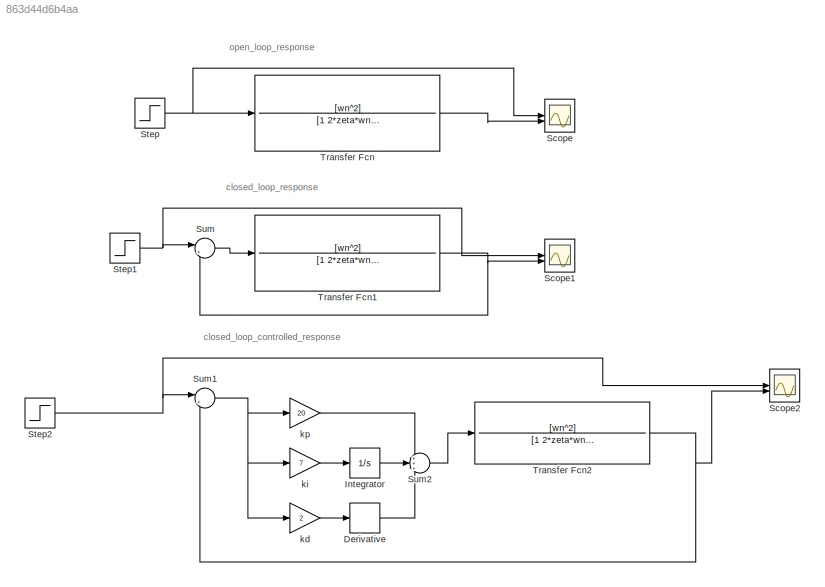
MODEL slx_863d44d6b4aa
KIND model
CONFIG AbsTol = auto
CONFIG EnableMultiTasking = off
CONFIG FixedStep = auto
CONFIG MaxStep = auto
CONFIG MinStep = auto
CONFIG RelTol = 1e-3
CONFIG SampleTimeConstraint = Unconstrained
CONFIG SolverName = VariableStepAuto
CONFIG StartTime = 0.0
CONFIG StopTime = 10.0
BLOCK [Derivative] Derivative
BLOCK [Integrator] Integrator
BLOCK [Scope] Scope
  Floating = off
  NumInputPorts = 2
  ScopeSpecificationString = Simulink.scopes.TimeScopeBlockCfg('CurrentConfiguration', extmgr.ConfigurationSet(extmgr.Configuration('Core','General UI',true),extmgr.Configuration('Core','Source UI',true),extmgr.Configuration('Sources','WiredSimulink',true),extmgr.Configuration('Visuals','Time Domain',true,'SerializedDisplays',{struct('MinYLimReal','-0.125','MaxYLimReal','1.125','YLabelReal','','MinYLimMag','0.00000','MaxYLimM...<+1430ch>
BLOCK [Scope] Scope1
  Floating = off
  NumInputPorts = 2
  ScopeSpecificationString = Simulink.scopes.TimeScopeBlockCfg('CurrentConfiguration', extmgr.ConfigurationSet(extmgr.Configuration('Core','General UI',true),extmgr.Configuration('Core','Source UI',true),extmgr.Configuration('Sources','WiredSimulink',true,'DataLoggingVariableName','ScopeData1'),extmgr.Configuration('Visuals','Time Domain',true,'SerializedDisplays',{struct('MinYLimReal','-0.12507','MaxYLimReal','1.1256','YLabe...<+1479ch>
BLOCK [Scope] Scope2
  Floating = off
  NumInputPorts = 2
  ScopeSpecificationString = Simulink.scopes.TimeScopeBlockCfg('CurrentConfiguration', extmgr.ConfigurationSet(extmgr.Configuration('Core','General UI',true),extmgr.Configuration('Core','Source UI',true),extmgr.Configuration('Sources','WiredSimulink',true,'DataLoggingVariableName','ScopeData2'),extmgr.Configuration('Visuals','Time Domain',true,'SerializedDisplays',{struct('MinYLimReal','-0.125','MaxYLimReal','1.125','YLabelRe...<+1497ch>
BLOCK [Step] Step
  SampleTime = 0
BLOCK [Step] Step1
  SampleTime = 0
BLOCK [Step] Step2
  SampleTime = 0
BLOCK [Sum] Sum
  Inputs = |+-
BLOCK [Sum] Sum1
  Inputs = |+-
BLOCK [Sum] Sum2
  Inputs = +++
BLOCK [TransferFcn] Transfer Fcn
  Denominator = [1  2*zeta*wn wn^2]
  Numerator = [wn^2]
BLOCK [TransferFcn] Transfer Fcn1
  Denominator = [1  2*zeta*wn wn^2]
  Numerator = [wn^2]
BLOCK [TransferFcn] Transfer Fcn2
  Denominator = [1  2*zeta*wn wn^2]
  Numerator = [wn^2]
BLOCK [Gain] kd
  Gain = 2
BLOCK [Gain] ki
  Gain = 7
BLOCK [Gain] kp
  Gain = 20
ANNOTATION (root): closed_loop_controlled_response
ANNOTATION (root): closed_loop_response
ANNOTATION (root): open_loop_response
LINE Derivative:1 -> Sum2:3
LINE Integrator:1 -> Sum2:2
NET Step1:1 -> Scope1:1, Sum:1
NET Step2:1 -> Scope2:1, Sum1:1
NET Step:1 -> Scope:1, Transfer Fcn:1
NET Sum1:1 -> kd:1, ki:1, kp:1
LINE Sum2:1 -> Transfer Fcn2:1
LINE Sum:1 -> Transfer Fcn1:1
NET Transfer Fcn1:1 -> Scope1:2, Sum:2
NET Transfer Fcn2:1 -> Scope2:2, Sum1:2
LINE Transfer Fcn:1 -> Scope:2
LINE kd:1 -> Derivative:1
LINE ki:1 -> Integrator:1
LINE kp:1 -> Sum2:1
note: NET lines group one-source signal fan-out (src -> all destinations, sorted); 1:1 wires keep LINE
